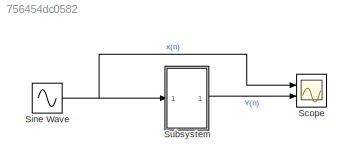
MODEL slx_756454dc0582
KIND model
CONFIG AbsTol = auto
CONFIG EnableMultiTasking = off
CONFIG FixedStep = 0.0001
CONFIG MaxStep = auto
CONFIG MinStep = auto
CONFIG RelTol = 1e-3
CONFIG SampleTimeConstraint = Unconstrained
CONFIG SolverName = FixedStepAuto
CONFIG StartTime = 0.0
CONFIG StopTime = 50
BLOCK [Scope] Scope
  Floating = off
  NumInputPorts = 2
  Ports = [2]
  ScopeSpecificationString = Simulink.scopes.TimeScopeBlockCfg('CurrentConfiguration', extmgr.ConfigurationSet(extmgr.Configuration('Core','General UI',true),extmgr.Configuration('Core','Source UI',true),extmgr.Configuration('Sources','WiredSimulink',true),extmgr.Configuration('Visuals','Time Domain',true,'SerializedDisplays',{struct('MinYLimReal','-1.25','MaxYLimReal','0.94869','YLabelReal','','MinYLimMag','0.00000','MaxYLim...<+2664ch>
BLOCK [Sin] Sine Wave
  Frequency = 20
  Ports = [0, 1]
  SampleTime = 0
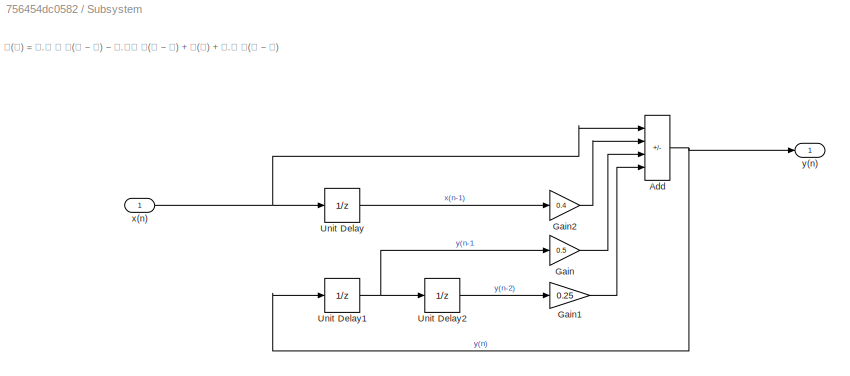
BLOCK [SubSystem] Subsystem
  Ports = [1, 1]
  RequestExecContextInheritance = off
  TreatAsAtomicUnit = on
BLOCK [Sum] Subsystem/Add
  IconShape = rectangular
  Inputs = +++-
  Ports = [4, 1]
BLOCK [Gain] Subsystem/Gain
  Gain = 0.5
BLOCK [Gain] Subsystem/Gain1
  Gain = 0.25
BLOCK [Gain] Subsystem/Gain2
  Gain = 0.4
BLOCK [UnitDelay] Subsystem/Unit Delay
  HasFrameUpgradeWarning = on
  SampleTime = -1
BLOCK [UnitDelay] Subsystem/Unit Delay1
  HasFrameUpgradeWarning = on
  SampleTime = -1
BLOCK [UnitDelay] Subsystem/Unit Delay2
  HasFrameUpgradeWarning = on
  SampleTime = -1
BLOCK [Inport] Subsystem/x(n)
BLOCK [Outport] Subsystem/y(n)
ANNOTATION Subsystem: 𝐲(𝐧) = 𝟎.𝟓 ∗ 𝐲(𝐧 − 𝟏) − 𝟎.𝟐𝟓 𝐲(𝐧 − 𝟐) + 𝐱(𝐧) + 𝟎.𝟒 𝐱(𝐧 − 𝟏)
NET Sine Wave:1 -> Scope:1, Subsystem:1
NET Subsystem/Add:1 -> Subsystem/Unit Delay1:1, Subsystem/y(n):1
LINE Subsystem/Gain1:1 -> Subsystem/Add:4
LINE Subsystem/Gain2:1 -> Subsystem/Add:2
LINE Subsystem/Gain:1 -> Subsystem/Add:3
NET Subsystem/Unit Delay1:1 -> Subsystem/Gain:1, Subsystem/Unit Delay2:1
LINE Subsystem/Unit Delay2:1 -> Subsystem/Gain1:1
LINE Subsystem/Unit Delay:1 -> Subsystem/Gain2:1
NET Subsystem/x(n):1 -> Subsystem/Add:1, Subsystem/Unit Delay:1
LINE Subsystem:1 -> Scope:2
note: NET lines group one-source signal fan-out (src -> all destinations, sorted); 1:1 wires keep LINE
